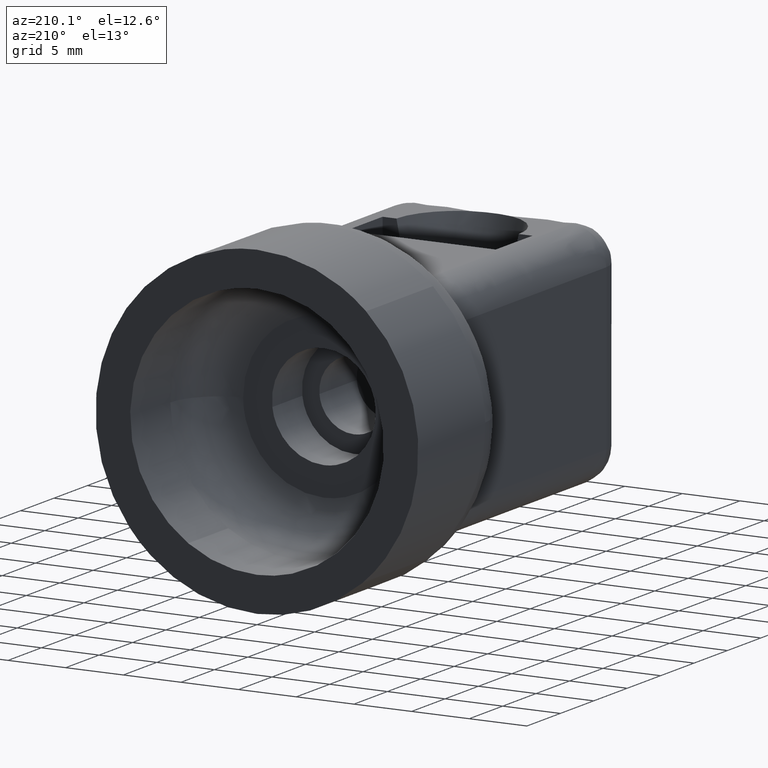
[diagram: clean part render]
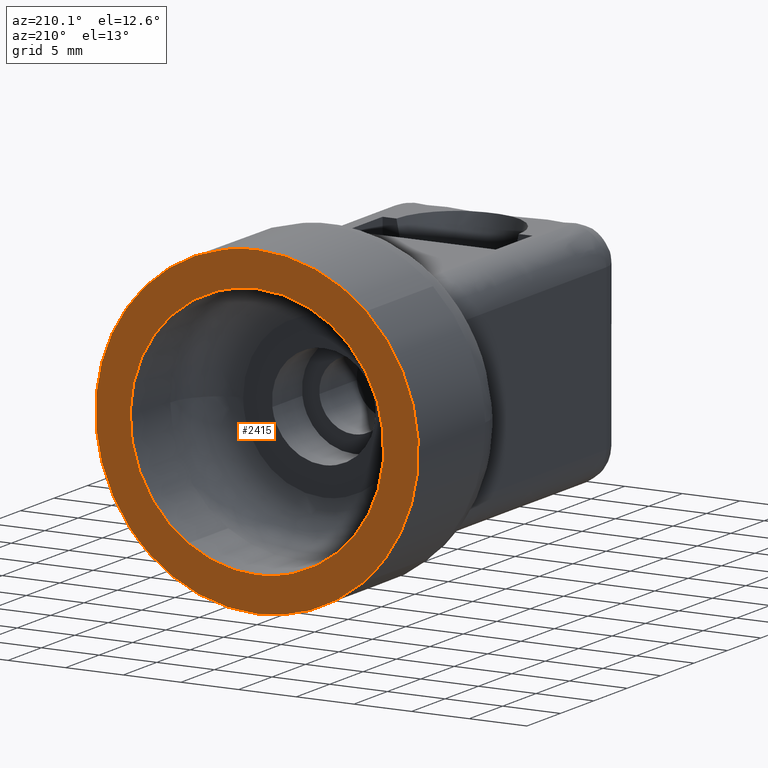
[diagram: same view with one face highlighted and labeled with its STEP entity id]
A machine part, auxiliary view. The second image highlights one B-rep face of the part: STEP entity #2415.
In plain terms, the highlighted face is a freeform B-spline surface patch.
Its self-contained STEP definition (entity closure, byte-faithful):
#318=CARTESIAN_POINT('',(-8.487871348123505,30.000001424923550,-6.996859293833334));
#319=VERTEX_POINT('',#318);
#325=CARTESIAN_POINT('',(0.0,30.000001424923550,11.0));
#326=VERTEX_POINT('',#325);
#327=CARTESIAN_POINT('',(0.0,30.000001424923550,11.0));
#328=CARTESIAN_POINT('',(-11.0,30.000001424923546,11.0));
#329=CARTESIAN_POINT('',(-11.0,30.000001424923550,0.0));
#330=CARTESIAN_POINT('',(-11.000000000000002,30.000001424923550,-3.949402726305359));
#331=CARTESIAN_POINT('',(-8.487871348123505,30.000001424923550,-6.996859293833334));
#339=(BOUNDED_CURVE()B_SPLINE_CURVE(2,(#327,#328,#329,#330,#331),.UNSPECIFIED.,.F.,.U.)B_SPLINE_CURVE_WITH_KNOTS((3,2,3),(0.500000000000000,0.750000000000000,0.860504605739122),.UNSPECIFIED.)CURVE()GEOMETRIC_REPRESENTATION_ITEM()RATIONAL_B_SPLINE_CURVE((1.0,0.707106781186548,1.0,0.870535801325429,0.855522724505776))REPRESENTATION_ITEM(''));
#340=EDGE_CURVE('',#326,#319,#339,.T.);
#342=CARTESIAN_POINT('',(5.970014942614784,30.000001424923550,-9.238989207967887));
#343=VERTEX_POINT('',#342);
#344=CARTESIAN_POINT('',(5.970014942614784,30.000001424923546,-9.238989207967887));
#345=CARTESIAN_POINT('',(11.0,30.000001424923550,-5.988732575151759));
#346=CARTESIAN_POINT('',(11.0,30.000001424923550,0.0));
#347=CARTESIAN_POINT('',(11.0,30.000001424923546,11.0));
#348=CARTESIAN_POINT('',(0.0,30.000001424923550,11.0));
#356=(BOUNDED_CURVE()B_SPLINE_CURVE(2,(#344,#345,#346,#347,#348),.UNSPECIFIED.,.F.,.U.)B_SPLINE_CURVE_WITH_KNOTS((3,2,3),(0.092934701090149,0.250000000000000,0.500000000000000),.UNSPECIFIED.)CURVE()GEOMETRIC_REPRESENTATION_ITEM()RATIONAL_B_SPLINE_CURVE((0.863190124796517,0.815986556153587,1.0,0.707106781186548,1.0))REPRESENTATION_ITEM(''));
#357=EDGE_CURVE('',#343,#326,#356,.T.);
#397=CARTESIAN_POINT('',(0.0,30.000001424923550,-11.0));
#398=VERTEX_POINT('',#397);
#399=CARTESIAN_POINT('',(0.0,30.000001424923550,-11.0));
#400=CARTESIAN_POINT('',(3.244735381493770,30.000001424923546,-10.999999999999998));
#401=CARTESIAN_POINT('',(5.970014942614784,30.000001424923553,-9.238989207967887));
#409=(BOUNDED_CURVE()B_SPLINE_CURVE(2,(#399,#400,#401),.UNSPECIFIED.,.F.,.U.)B_SPLINE_CURVE_WITH_KNOTS((3,3),(0.0,0.092934701090149),.UNSPECIFIED.)CURVE()GEOMETRIC_REPRESENTATION_ITEM()RATIONAL_B_SPLINE_CURVE((1.0,0.891120225032960,0.863190124796517))REPRESENTATION_ITEM(''));
#410=EDGE_CURVE('',#398,#343,#409,.T.);
#412=CARTESIAN_POINT('',(-8.487871348123505,30.000001424923550,-6.996859293833334));
#413=CARTESIAN_POINT('',(-5.187937700960486,30.000001424923553,-11.0));
#414=CARTESIAN_POINT('',(0.0,30.000001424923550,-11.0));
#422=(BOUNDED_CURVE()B_SPLINE_CURVE(2,(#412,#413,#414),.UNSPECIFIED.,.F.,.U.)B_SPLINE_CURVE_WITH_KNOTS((3,3),(0.860504605739122,1.0),.UNSPECIFIED.)CURVE()GEOMETRIC_REPRESENTATION_ITEM()RATIONAL_B_SPLINE_CURVE((0.855522724505776,0.836570979861119,1.0))REPRESENTATION_ITEM(''));
#423=EDGE_CURVE('',#319,#398,#422,.T.);
#658=CARTESIAN_POINT('',(-9.160755170701970,30.000001424923550,-10.586811763767921));
#659=VERTEX_POINT('',#658);
#660=CARTESIAN_POINT('',(0.0,30.000001424923550,-14.000000664964199));
#661=VERTEX_POINT('',#660);
#662=CARTESIAN_POINT('',(-9.160755170701970,30.000001424923557,-10.586811763767917));
#663=CARTESIAN_POINT('',(-5.216234121099165,30.000001424923553,-14.000000664964203));
#664=CARTESIAN_POINT('',(0.0,30.000001424923550,-14.000000664964199));
#672=(BOUNDED_CURVE()B_SPLINE_CURVE(2,(#662,#663,#664),.UNSPECIFIED.,.F.,.U.)B_SPLINE_CURVE_WITH_KNOTS((3,3),(0.885882133147832,1.0),.UNSPECIFIED.)CURVE()GEOMETRIC_REPRESENTATION_ITEM()RATIONAL_B_SPLINE_CURVE((0.854663299575205,0.866302602614174,1.0))REPRESENTATION_ITEM(''));
#673=EDGE_CURVE('',#659,#661,#672,.T.);
#675=CARTESIAN_POINT('',(0.0,30.000001424923550,14.000000664964199));
#676=VERTEX_POINT('',#675);
#677=CARTESIAN_POINT('',(0.0,30.000001424923550,-14.000000664964199));
#678=CARTESIAN_POINT('',(14.000000664964197,30.000001424923546,-14.000000664964197));
#679=CARTESIAN_POINT('',(14.000000664964199,30.000001424923550,0.0));
#680=CARTESIAN_POINT('',(14.000000664964197,30.000001424923546,14.000000664964197));
#681=CARTESIAN_POINT('',(0.0,30.000001424923550,14.000000664964199));
#689=(BOUNDED_CURVE()B_SPLINE_CURVE(2,(#677,#678,#679,#680,#681),.UNSPECIFIED.,.F.,.U.)B_SPLINE_CURVE_WITH_KNOTS((3,2,3),(0.0,0.250000000000000,0.500000000000000),.UNSPECIFIED.)CURVE()GEOMETRIC_REPRESENTATION_ITEM()RATIONAL_B_SPLINE_CURVE((1.0,0.707106781186548,1.0,0.707106781186548,1.0))REPRESENTATION_ITEM(''));
#690=EDGE_CURVE('',#661,#676,#689,.T.);
#692=CARTESIAN_POINT('',(-9.458262801346358,30.000001424923550,10.321883713725180));
#693=VERTEX_POINT('',#692);
#694=CARTESIAN_POINT('',(0.0,30.000001424923550,14.000000664964199));
#695=CARTESIAN_POINT('',(-5.444301638679315,30.000001424923550,14.000000664964196));
#696=CARTESIAN_POINT('',(-9.458262801346358,30.000001424923543,10.321883713725180));
#704=(BOUNDED_CURVE()B_SPLINE_CURVE(2,(#694,#695,#696),.UNSPECIFIED.,.F.,.U.)B_SPLINE_CURVE_WITH_KNOTS((3,3),(0.500000000000000,0.618415192864190),.UNSPECIFIED.)CURVE()GEOMETRIC_REPRESENTATION_ITEM()RATIONAL_B_SPLINE_CURVE((1.0,0.861267972022367,0.853959782840026))REPRESENTATION_ITEM(''));
#705=EDGE_CURVE('',#676,#693,#704,.T.);
#802=CARTESIAN_POINT('',(-9.458262801346358,30.000001424923543,10.321883713725180));
#803=CARTESIAN_POINT('',(-14.000000664964194,30.000001424923553,6.160148622806454));
#804=CARTESIAN_POINT('',(-14.000000664964199,30.000001424923550,0.0));
#805=CARTESIAN_POINT('',(-14.000000664964201,30.000001424923557,-6.399418971722182));
#806=CARTESIAN_POINT('',(-9.160755170701970,30.000001424923553,-10.586811763767916));
#814=(BOUNDED_CURVE()B_SPLINE_CURVE(2,(#802,#803,#804,#805,#806),.UNSPECIFIED.,.F.,.U.)B_SPLINE_CURVE_WITH_KNOTS((3,2,3),(0.618415192864190,0.750000000000000,0.885882133147832),.UNSPECIFIED.)CURVE()GEOMETRIC_REPRESENTATION_ITEM()RATIONAL_B_SPLINE_CURVE((0.853959782840026,0.845838809164181,1.0,0.840804178572373,0.854663299575205))REPRESENTATION_ITEM(''));
#815=EDGE_CURVE('',#693,#659,#814,.T.);
#2398=CARTESIAN_POINT('',(-15.397113243047700,30.000001424923550,-15.398600939968670));
#2399=CARTESIAN_POINT('',(-15.397113243047700,30.000001424923550,15.398601440647710));
#2400=CARTESIAN_POINT('',(15.398530665409631,30.000001424923550,-15.398600939968670));
#2401=CARTESIAN_POINT('',(15.398530665409631,30.000001424923550,15.398601440647710));
#2402=B_SPLINE_SURFACE_WITH_KNOTS('',1,1,((#2398,#2400),(#2399,#2401)),.UNSPECIFIED.,.F.,.F.,.U.,(2,2),(2,2),(0.0,30.797202380616380),(0.0,30.795643908457329),.UNSPECIFIED.);
#2403=ORIENTED_EDGE('',*,*,#673,.F.);
#2404=ORIENTED_EDGE('',*,*,#815,.F.);
#2405=ORIENTED_EDGE('',*,*,#705,.F.);
#2406=ORIENTED_EDGE('',*,*,#690,.F.);
#2407=EDGE_LOOP('',(#2403,#2404,#2405,#2406));
#2408=FACE_OUTER_BOUND('',#2407,.T.);
#2409=ORIENTED_EDGE('',*,*,#340,.T.);
#2410=ORIENTED_EDGE('',*,*,#423,.T.);
#2411=ORIENTED_EDGE('',*,*,#410,.T.);
#2412=ORIENTED_EDGE('',*,*,#357,.T.);
#2413=EDGE_LOOP('',(#2409,#2410,#2411,#2412));
#2414=FACE_BOUND('',#2413,.T.);
#2415=ADVANCED_FACE('',(#2408,#2414),#2402,.T.);